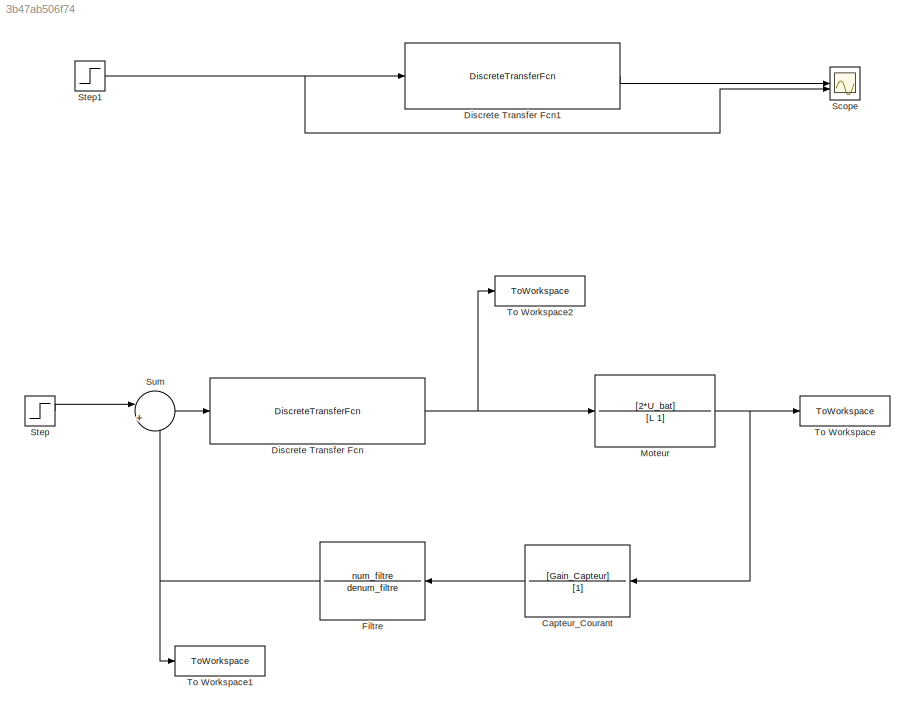
MODEL slx_3b47ab506f74
KIND model
CONFIG AbsTol = auto
CONFIG EnableMultiTasking = off
CONFIG FixedStep = auto
CONFIG MaxStep = auto
CONFIG MinStep = auto
CONFIG RelTol = 1e-3
CONFIG SampleTimeConstraint = Unconstrained
CONFIG SolverName = VariableStepAuto
CONFIG StartTime = 0.0
CONFIG StopTime = 10
BLOCK [TransferFcn] Capteur_Courant
  Denominator = [1]
  NameLocation = top
  Numerator = [Gain_Capteur]
BLOCK [DiscreteTransferFcn] Discrete Transfer Fcn
  Denominator = [1 -1]
  InputPortMap = u0
  Numerator = [K_Corr Te/tau_i-K_Corr]
  SampleTime = Te
BLOCK [DiscreteTransferFcn] Discrete Transfer Fcn1
  Denominator = [1 -1]
  InputPortMap = u0
  Numerator = [K_Corr Te/tau_i-K_Corr]
  SampleTime = Te
BLOCK [TransferFcn] Filtre
  Denominator = denum_filtre
  NameLocation = top
  Numerator = num_filtre
BLOCK [TransferFcn] Moteur
  Denominator = [L 1]
  Numerator = [2*U_bat]
BLOCK [Scope] Scope
  Floating = off
  NumInputPorts = 2
  ScopeSpecificationString = Simulink.scopes.TimeScopeBlockCfg('CurrentConfiguration', extmgr.ConfigurationSet(extmgr.Configuration('Core','General UI',true),extmgr.Configuration('Core','Source UI',true),extmgr.Configuration('Sources','WiredSimulink',true),extmgr.Configuration('Visuals','Time Domain',true,'SerializedDisplays',{struct('MinYLimReal','-0.17101','MaxYLimReal','0.42171','YLabelReal','','MinYLimMag','0.00000','MaxY...<+1804ch>
BLOCK [Step] Step
  After = 3.3
  SampleTime = 0
BLOCK [Step] Step1
  After = 0.2
  SampleTime = Te
BLOCK [Sum] Sum
  Inputs = |+-
BLOCK [ToWorkspace] To Workspace
  FixptAsFi = on
  MaxDataPoints = inf
  SampleTime = -1
  SaveFormat = Timeseries
  VariableName = simout
BLOCK [ToWorkspace] To Workspace1
  FixptAsFi = on
  MaxDataPoints = inf
  SampleTime = -1
  SaveFormat = Timeseries
  VariableName = retour
BLOCK [ToWorkspace] To Workspace2
  FixptAsFi = on
  MaxDataPoints = inf
  SampleTime = -1
  SaveFormat = Timeseries
  VariableName = correcteur
LINE Capteur_Courant:1 -> Filtre:1
LINE Discrete Transfer Fcn1:1 -> Scope:1
NET Discrete Transfer Fcn:1 -> Moteur:1, To Workspace2:1
NET Filtre:1 -> Sum:2, To Workspace1:1
NET Moteur:1 -> Capteur_Courant:1, To Workspace:1
NET Step1:1 -> Discrete Transfer Fcn1:1, Scope:2
LINE Step:1 -> Sum:1
LINE Sum:1 -> Discrete Transfer Fcn:1
note: NET lines group one-source signal fan-out (src -> all destinations, sorted); 1:1 wires keep LINE
